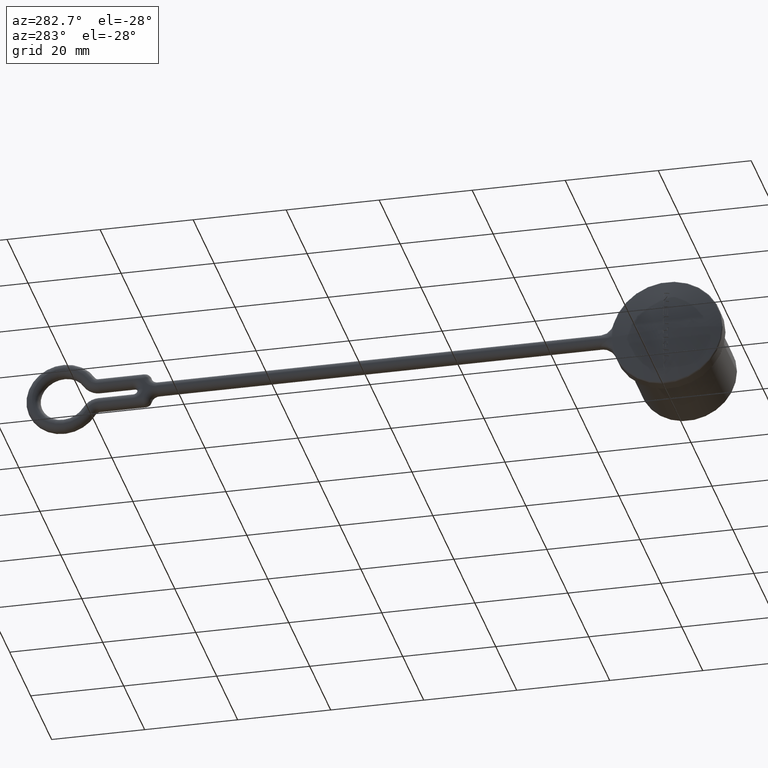
[diagram: clean part render]
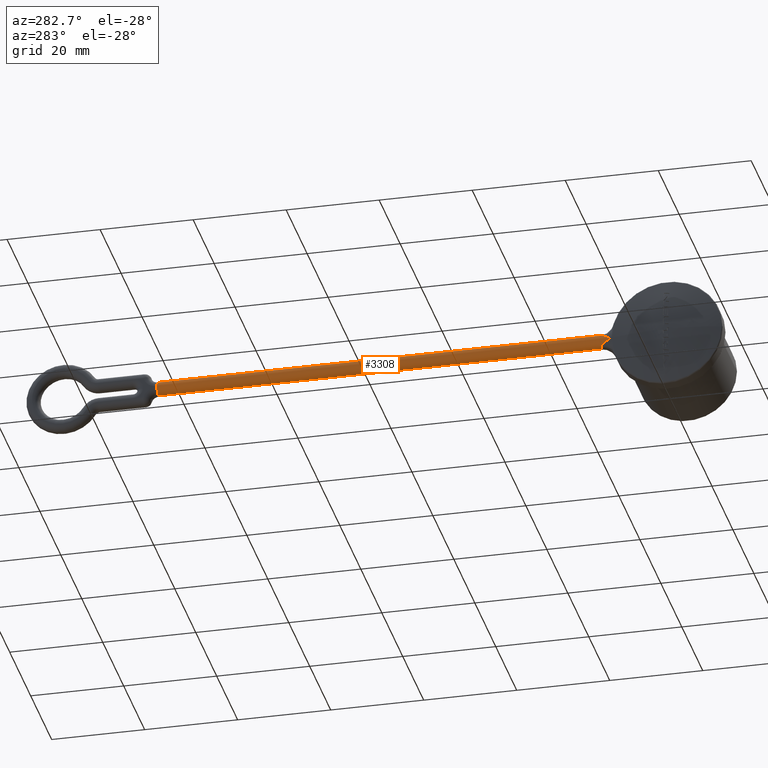
[diagram: same view with one face highlighted and labeled with its STEP entity id]
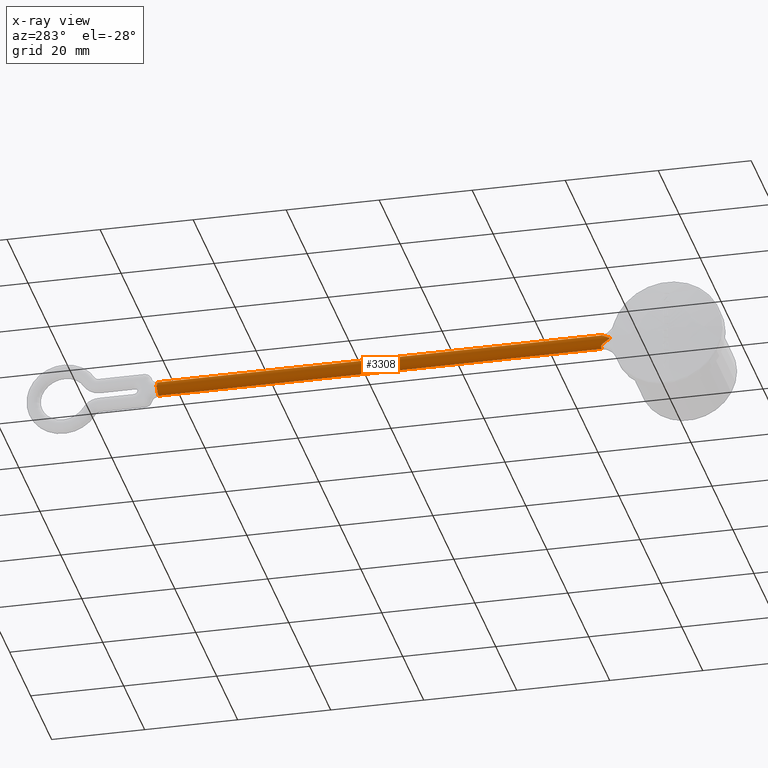
[diagram: x-ray of the same camera — body ghosted, the highlighted face saturated]
A machine part, auxiliary view. The second image highlights one B-rep face of the part: STEP entity #3308.
The next image is the same camera in x-ray: the body ghosted, the highlighted face saturated — about 0% of this face is hidden behind the body in this view.
In plain terms, the highlighted cylindrical surface (edge-blend (fillet) strip) has radius 1.5 mm, axis along (0, 1, 0).
Its self-contained STEP definition (entity closure, byte-faithful):
#134=CARTESIAN_POINT('',(-1.499999999963E0,1.430908802125E1,1.500000241684E0));
#136=DIRECTION('',(-1.955662611077E-8,1.E0,-6.990299260519E-9));
#137=VECTOR('',#136,9.532646955356E1);
#138=CARTESIAN_POINT('',(-1.500000000049E0,1.430908802125E1,-1.500000155045E0));
#139=LINE('',#138,#137);
#140=CARTESIAN_POINT('',(-1.500001864313E0,1.096355575748E2,-1.500000821406E0));
#141=CARTESIAN_POINT('',(-1.631865732676E0,1.096353730808E2,-1.500000821406E0));
#142=CARTESIAN_POINT('',(-1.881277357848E0,1.096350604010E2,-1.464997124169E0));
#143=CARTESIAN_POINT('',(-2.190698911829E0,1.096358528116E2,-1.343656240625E0));
#144=CARTESIAN_POINT('',(-2.438821865582E0,1.096346291464E2,-1.180974491790E0));
#145=CARTESIAN_POINT('',(-2.630084011215E0,1.096356588080E2,
-9.969655251735E-1));
#146=CARTESIAN_POINT('',(-2.772409853830E0,1.096451821699E2,
-8.049390506944E-1));
#147=CARTESIAN_POINT('',(-2.872775524145E0,1.096545756540E2,
-6.158717459430E-1));
#148=CARTESIAN_POINT('',(-2.940529048378E0,1.096493964758E2,
-4.320754572532E-1));
#149=CARTESIAN_POINT('',(-2.980844278596E0,1.096605632194E2,
-2.575745379269E-1));
#150=CARTESIAN_POINT('',(-2.997855475169E0,1.097239221581E2,
-1.089890711566E-1));
#151=CARTESIAN_POINT('',(-2.999827544110E0,1.098077234390E2,
-3.769970123482E-2));
#152=CARTESIAN_POINT('',(-2.999991890715E0,1.098594506440E2,
-8.419086520019E-3));
#154=CARTESIAN_POINT('',(-2.999991890715E0,1.098594506440E2,
-8.419086520019E-3));
#155=CARTESIAN_POINT('',(-2.999991890715E0,1.098571607497E2,
-5.879184503042E-3));
#156=CARTESIAN_POINT('',(-3.000002475100E0,1.098522021393E2,
-1.653729213028E-3));
#157=CARTESIAN_POINT('',(-3.000003501077E0,1.098435930236E2,2.191759515605E-4));
#158=CARTESIAN_POINT('',(-2.999990180754E0,1.098371422838E2,2.295388866925E-3));
#159=CARTESIAN_POINT('',(-2.999990180754E0,1.098325152312E2,3.223359322540E-3));
#161=CARTESIAN_POINT('',(-2.999990180754E0,1.098325152312E2,3.223359322540E-3));
#162=CARTESIAN_POINT('',(-2.999990180754E0,1.097728346723E2,6.410265023197E-2));
#163=CARTESIAN_POINT('',(-2.992953726248E0,1.096823978730E2,1.981736491052E-1));
#164=CARTESIAN_POINT('',(-2.937518636589E0,1.096221802057E2,4.597375051477E-1));
#165=CARTESIAN_POINT('',(-2.817991492965E0,1.096348391561E2,7.393742275708E-1));
#166=CARTESIAN_POINT('',(-2.624329133961E0,1.096470338351E2,1.013494898038E0));
#167=CARTESIAN_POINT('',(-2.341688869686E0,1.096304632148E2,1.263410357081E0));
#168=CARTESIAN_POINT('',(-1.954486356753E0,1.096371049299E2,1.452260443725E0));
#169=CARTESIAN_POINT('',(-1.655194485317E0,1.096358455496E2,1.500001939332E0));
#170=CARTESIAN_POINT('',(-1.499998403102E0,1.096355575760E2,1.500001939332E0));
#172=DIRECTION('',(-1.675149533161E-8,-1.E0,-1.780877888240E-8));
#173=VECTOR('',#172,9.532646955471E1);
#174=CARTESIAN_POINT('',(-1.499998403102E0,1.096355575760E2,1.500001939332E0));
#175=LINE('',#174,#173);
#176=CARTESIAN_POINT('',(-1.499999999963E0,1.430908802125E1,1.500000241684E0));
#177=CARTESIAN_POINT('',(-1.642487181919E0,1.430910054676E1,1.500004933758E0));
#178=CARTESIAN_POINT('',(-1.785002021384E0,1.432878783615E1,1.479568509643E0));
#179=CARTESIAN_POINT('',(-1.922028789052E0,1.436499140250E1,1.439405106489E0));
#181=CARTESIAN_POINT('',(-1.922028789052E0,1.436499140250E1,1.439405106489E0));
#182=CARTESIAN_POINT('',(-2.112942685487E0,1.441550084918E1,1.383434125703E0));
#183=CARTESIAN_POINT('',(-2.465378119886E0,1.425763866162E1,1.191245498338E0));
#184=CARTESIAN_POINT('',(-2.787467963623E0,1.363641651559E1,8.123771398688E-1));
#185=CARTESIAN_POINT('',(-2.930040181030E0,1.300836573507E1,4.863117417173E-1));
#186=CARTESIAN_POINT('',(-2.988245734913E0,1.252586117345E1,2.228089301867E-1));
#187=CARTESIAN_POINT('',(-3.000000135232E0,1.235714273464E1,7.634018978455E-2));
#188=CARTESIAN_POINT('',(-2.999999972290E0,1.235712331879E1,
3.020522768787E-12));
#190=CARTESIAN_POINT('',(-2.999999972290E0,1.235712331879E1,
3.020522768787E-12));
#191=CARTESIAN_POINT('',(-3.000002873018E0,1.235705316767E1,
-7.633579608203E-2));
#192=CARTESIAN_POINT('',(-2.988250493360E0,1.252584914985E1,
-2.227490426924E-1));
#193=CARTESIAN_POINT('',(-2.930054509396E0,1.300823723370E1,
-4.862817044432E-1));
#194=CARTESIAN_POINT('',(-2.787503343240E0,1.363634661279E1,
-8.123257174243E-1));
#195=CARTESIAN_POINT('',(-2.465378948810E0,1.425760358207E1,-1.191230001655E0));
#196=CARTESIAN_POINT('',(-2.112979461473E0,1.441558177177E1,-1.383460668880E0));
#197=CARTESIAN_POINT('',(-1.922028646867E0,1.436499140254E1,-1.439404620953E0));
#199=CARTESIAN_POINT('',(-1.922028646867E0,1.436499140254E1,-1.439404620953E0));
#200=CARTESIAN_POINT('',(-1.784993130071E0,1.432877501604E1,-1.479575174488E0));
#201=CARTESIAN_POINT('',(-1.642510142183E0,1.430907229322E1,-1.500008196335E0));
#202=CARTESIAN_POINT('',(-1.500000000049E0,1.430908802125E1,-1.500000155045E0));
#261=CARTESIAN_POINT('',(-1.500001864313E0,1.096355575748E2,-1.500000821406E0));
#2759=VERTEX_POINT('',#134);
#2769=CARTESIAN_POINT('',(-1.499998403102E0,1.096355575760E2,1.500001939332E0));
#2770=VERTEX_POINT('',#2769);
#2772=VERTEX_POINT('',#261);
#2773=CARTESIAN_POINT('',(-1.500000000049E0,1.430908802125E1,
-1.500000155045E0));
#2774=VERTEX_POINT('',#2773);
#2775=VERTEX_POINT('',#152);
#2776=VERTEX_POINT('',#159);
#2777=VERTEX_POINT('',#179);
#2778=VERTEX_POINT('',#188);
#2779=VERTEX_POINT('',#197);
#3285=CARTESIAN_POINT('',(-1.5E0,1.040707677229E1,0.E0));
#3286=DIRECTION('',(0.E0,1.E0,0.E0));
#3287=DIRECTION('',(0.E0,0.E0,-1.E0));
#3288=AXIS2_PLACEMENT_3D('',#3285,#3286,#3287);
#3289=CYLINDRICAL_SURFACE('',#3288,1.5E0);
#3290=ORIENTED_EDGE('',*,*,#3275,.T.);
#3292=ORIENTED_EDGE('',*,*,#3291,.T.);
#3294=ORIENTED_EDGE('',*,*,#3293,.T.);
#3296=ORIENTED_EDGE('',*,*,#3295,.T.);
#3297=ORIENTED_EDGE('',*,*,#3267,.T.);
#3299=ORIENTED_EDGE('',*,*,#3298,.T.);
#3301=ORIENTED_EDGE('',*,*,#3300,.T.);
#3303=ORIENTED_EDGE('',*,*,#3302,.T.);
#3305=ORIENTED_EDGE('',*,*,#3304,.T.);
#3306=EDGE_LOOP('',(#3290,#3292,#3294,#3296,#3297,#3299,#3301,#3303,#3305));
#3307=FACE_OUTER_BOUND('',#3306,.F.);
#153=B_SPLINE_CURVE_WITH_KNOTS('',3,(#140,#141,#142,#143,#144,#145,#146,#147,
#148,#149,#150,#151,#152),.UNSPECIFIED.,.F.,.F.,(4,1,1,1,1,1,1,1,1,1,4),(0.E0,
1.E-1,2.E-1,3.E-1,4.E-1,5.E-1,6.E-1,7.E-1,8.E-1,9.E-1,1.E0),.UNSPECIFIED.);
#160=B_SPLINE_CURVE_WITH_KNOTS('',3,(#154,#155,#156,#157,#158,#159),
.UNSPECIFIED.,.F.,.F.,(4,1,1,4),(0.E0,3.333333333333E-1,6.666666666667E-1,1.E0),
.UNSPECIFIED.);
#171=B_SPLINE_CURVE_WITH_KNOTS('',3,(#161,#162,#163,#164,#165,#166,#167,#168,
#169,#170),.UNSPECIFIED.,.F.,.F.,(4,1,1,1,1,1,1,4),(0.E0,1.428571428571E-1,
2.857142857143E-1,4.285714285714E-1,5.714285714286E-1,7.142857142857E-1,
8.571428571429E-1,1.E0),.UNSPECIFIED.);
#180=B_SPLINE_CURVE_WITH_KNOTS('',3,(#176,#177,#178,#179),.UNSPECIFIED.,.F.,.F.,
(4,4),(0.E0,1.E0),.UNSPECIFIED.);
#189=B_SPLINE_CURVE_WITH_KNOTS('',3,(#181,#182,#183,#184,#185,#186,#187,#188),
.UNSPECIFIED.,.F.,.F.,(4,1,1,1,1,4),(0.E0,2.5E-1,5.E-1,7.5E-1,8.75E-1,1.E0),
.UNSPECIFIED.);
#198=B_SPLINE_CURVE_WITH_KNOTS('',3,(#190,#191,#192,#193,#194,#195,#196,#197),
.UNSPECIFIED.,.F.,.F.,(4,1,1,1,1,4),(0.E0,1.25E-1,2.5E-1,5.E-1,7.5E-1,1.E0),
.UNSPECIFIED.);
#203=B_SPLINE_CURVE_WITH_KNOTS('',3,(#199,#200,#201,#202),.UNSPECIFIED.,.F.,.F.,
(4,4),(0.E0,1.E0),.UNSPECIFIED.);
#3267=EDGE_CURVE('',#2770,#2759,#175,.T.);
#3275=EDGE_CURVE('',#2774,#2772,#139,.T.);
#3291=EDGE_CURVE('',#2772,#2775,#153,.T.);
#3293=EDGE_CURVE('',#2775,#2776,#160,.T.);
#3295=EDGE_CURVE('',#2776,#2770,#171,.T.);
#3298=EDGE_CURVE('',#2759,#2777,#180,.T.);
#3300=EDGE_CURVE('',#2777,#2778,#189,.T.);
#3302=EDGE_CURVE('',#2778,#2779,#198,.T.);
#3304=EDGE_CURVE('',#2779,#2774,#203,.T.);
#3308=ADVANCED_FACE('',(#3307),#3289,.T.);